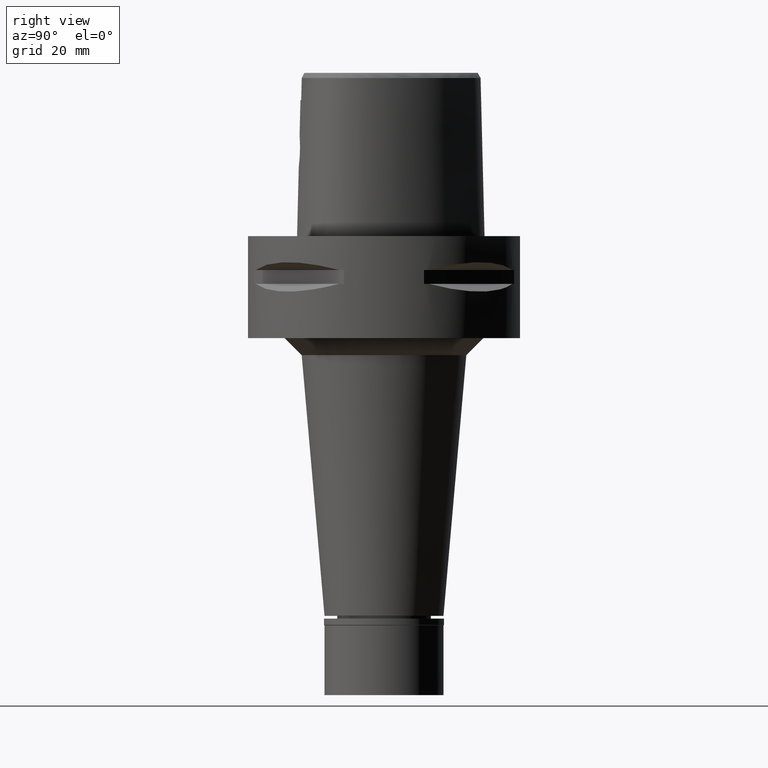
[diagram: clean part render]
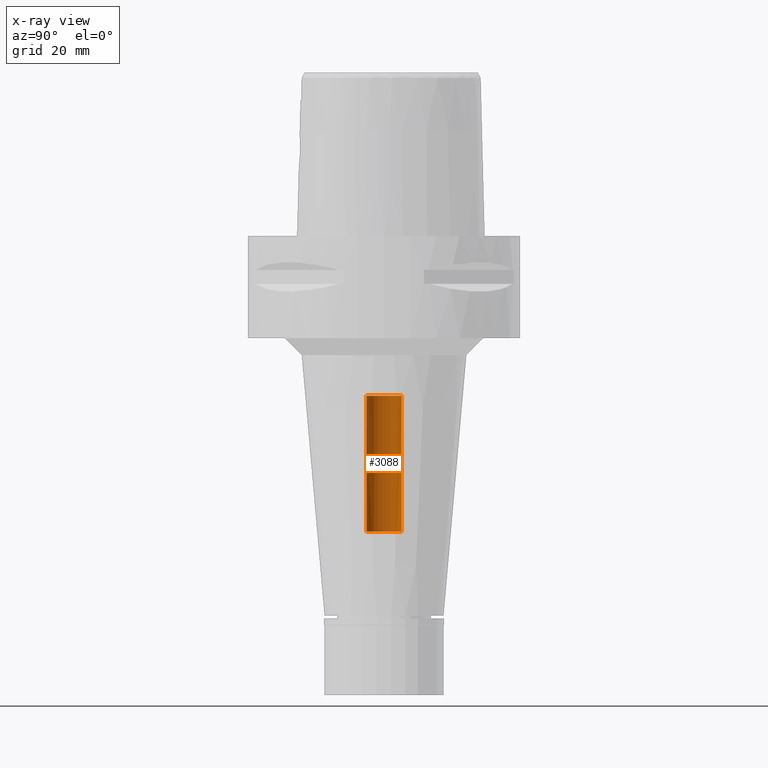
[diagram: x-ray — body ghosted, one internal face saturated and labeled with its STEP entity id]
A machine part, right view, then the same camera in x-ray: the body is ghosted and one INTERNAL B-rep face — a face not visible from any outside direction — is saturated and labeled: STEP entity #3088.
In plain terms, the highlighted cylindrical surface (edge-blend (fillet) strip) has radius 5.2 mm, axis along (0, 0, -1).
Its self-contained STEP definition (entity closure, byte-faithful):
#20 = VECTOR ( 'NONE', #4095, 1000.000000000000000 ) ;
#159 = VECTOR ( 'NONE', #4609, 1000.000000000000000 ) ;
#248 = CARTESIAN_POINT ( 'NONE',  ( 0.0000000000000000000, 5.200000000000000178, -87.00000000000000000 ) ) ;
#317 = ORIENTED_EDGE ( 'NONE', *, *, #4804, .T. ) ;
#412 = CARTESIAN_POINT ( 'NONE',  ( 0.0000000000000000000, -5.200000000000000178, -87.00000000000000000 ) ) ;
#619 = EDGE_CURVE ( 'NONE', #1343, #4165, #4352, .T. ) ;
#621 = CARTESIAN_POINT ( 'NONE',  ( 0.0000000000000000000, 5.200000000000000178, -87.00000000000000000 ) ) ;
#909 = AXIS2_PLACEMENT_3D ( 'NONE', #5060, #4246, #2693 ) ;
#1185 = EDGE_CURVE ( 'NONE', #1343, #2276, #3217, .T. ) ;
#1343 = VERTEX_POINT ( 'NONE', #412 ) ;
#1439 = LINE ( 'NONE', #621, #159 ) ;
#1728 = CARTESIAN_POINT ( 'NONE',  ( 0.0000000000000000000, -5.200000000000000178, -87.00000000000000000 ) ) ;
#1922 = CIRCLE ( 'NONE', #4154, 5.200000000000000178 ) ;
#2153 = DIRECTION ( 'NONE',  ( 0.0000000000000000000, -1.000000000000000000, 0.0000000000000000000 ) ) ;
#2276 = VERTEX_POINT ( 'NONE', #2659 ) ;
#2391 = FACE_OUTER_BOUND ( 'NONE', #3185, .T. ) ;
#2444 = CARTESIAN_POINT ( 'NONE',  ( 0.0000000000000000000, 1.303207891312999846E-14, -87.00000000000000000 ) ) ;
#2659 = CARTESIAN_POINT ( 'NONE',  ( 0.0000000000000000000, -5.200000000000000178, -47.00000000000000000 ) ) ;
#2693 = DIRECTION ( 'NONE',  ( 0.0000000000000000000, -1.000000000000000000, 0.0000000000000000000 ) ) ;
#2924 = DIRECTION ( 'NONE',  ( 0.0000000000000000000, 0.0000000000000000000, -1.000000000000000000 ) ) ;
#3017 = DIRECTION ( 'NONE',  ( 0.0000000000000000000, 0.0000000000000000000, 1.000000000000000000 ) ) ;
#3088 = ADVANCED_FACE ( 'NONE', ( #2391 ), #4327, .F. ) ;
#3180 = CARTESIAN_POINT ( 'NONE',  ( 0.0000000000000000000, 5.200000000000000178, -47.00000000000000000 ) ) ;
#3185 = EDGE_LOOP ( 'NONE', ( #317, #3469, #5132, #3594 ) ) ;
#3217 = LINE ( 'NONE', #1728, #20 ) ;
#3469 = ORIENTED_EDGE ( 'NONE', *, *, #1185, .F. ) ;
#3594 = ORIENTED_EDGE ( 'NONE', *, *, #3655, .T. ) ;
#3655 = EDGE_CURVE ( 'NONE', #4165, #3848, #1439, .T. ) ;
#3848 = VERTEX_POINT ( 'NONE', #3180 ) ;
#4095 = DIRECTION ( 'NONE',  ( 0.0000000000000000000, 0.0000000000000000000, 1.000000000000000000 ) ) ;
#4154 = AXIS2_PLACEMENT_3D ( 'NONE', #4581, #3017, #4634 ) ;
#4165 = VERTEX_POINT ( 'NONE', #248 ) ;
#4246 = DIRECTION ( 'NONE',  ( 0.0000000000000000000, 0.0000000000000000000, -1.000000000000000000 ) ) ;
#4327 = CYLINDRICAL_SURFACE ( 'NONE', #909, 5.200000000000000178 ) ;
#4352 = CIRCLE ( 'NONE', #4777, 5.200000000000000178 ) ;
#4581 = CARTESIAN_POINT ( 'NONE',  ( 0.0000000000000000000, 1.303207891312999846E-14, -47.00000000000000000 ) ) ;
#4609 = DIRECTION ( 'NONE',  ( 0.0000000000000000000, 0.0000000000000000000, 1.000000000000000000 ) ) ;
#4634 = DIRECTION ( 'NONE',  ( 0.0000000000000000000, 1.000000000000000000, 0.0000000000000000000 ) ) ;
#4777 = AXIS2_PLACEMENT_3D ( 'NONE', #2444, #2924, #2153 ) ;
#4804 = EDGE_CURVE ( 'NONE', #3848, #2276, #1922, .T. ) ;
#5060 = CARTESIAN_POINT ( 'NONE',  ( 0.0000000000000000000, 1.303207891312999846E-14, 6.415000000000000036 ) ) ;
#5132 = ORIENTED_EDGE ( 'NONE', *, *, #619, .T. ) ;